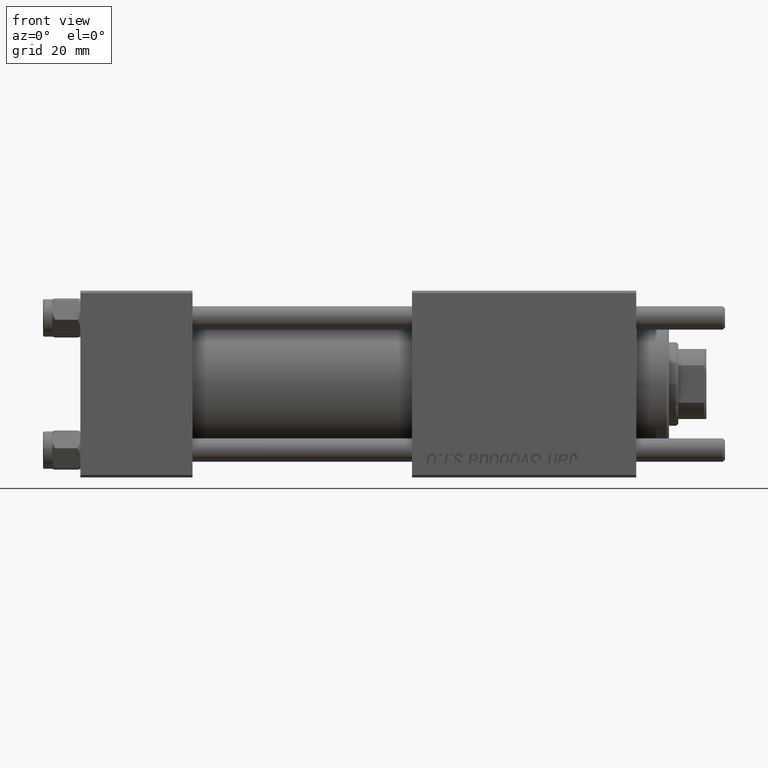
[diagram: clean part render]
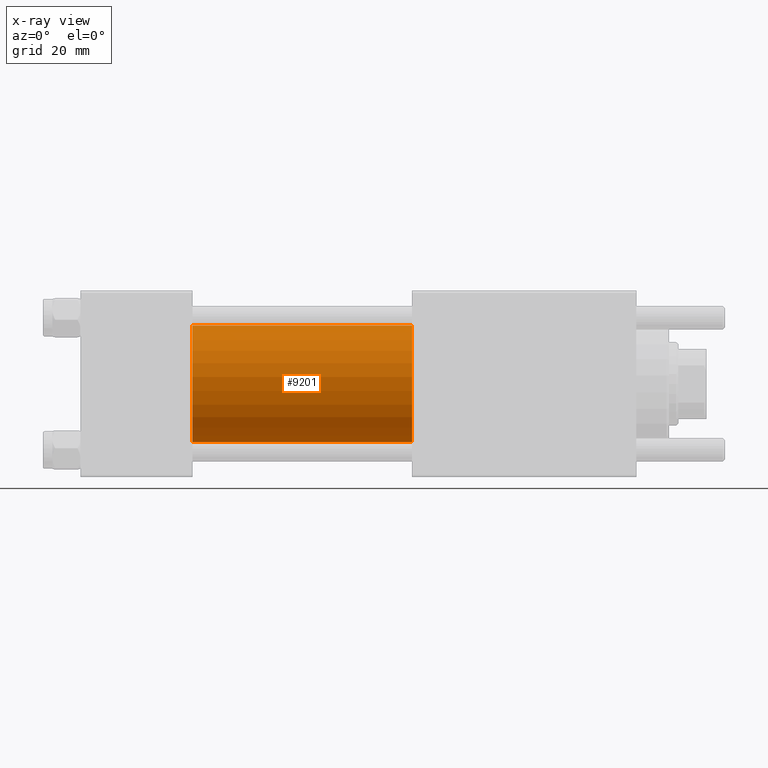
[diagram: x-ray — body ghosted, one internal face saturated and labeled with its STEP entity id]
A machine part, front view, then the same camera in x-ray: the body is ghosted and one INTERNAL B-rep face — a face not visible from any outside direction — is saturated and labeled: STEP entity #9201.
In plain terms, the highlighted cylindrical surface (partial cylindrical patch) has radius 12.5 mm, axis along (-1, -0, -0).
Its self-contained STEP definition (entity closure, byte-faithful):
#1179 = VERTEX_POINT ( 'NONE', #10281 ) ;
#1277 = EDGE_CURVE ( 'NONE', #1179, #28705, #30816, .T. ) ;
#5789 = DIRECTION ( 'NONE',  ( -1.000000000000000000, -0.000000000000000000, -0.000000000000000000 ) ) ;
#7088 = AXIS2_PLACEMENT_3D ( 'NONE', #40027, #31429, #13934 ) ;
#7157 = CARTESIAN_POINT ( 'NONE',  ( 24.00000000000000000, -1.071276715031019515E-15, -12.49999999999999645 ) ) ;
#8072 = LINE ( 'NONE', #30433, #29330 ) ;
#8675 = CARTESIAN_POINT ( 'NONE',  ( 71.00000000000001421, -1.071276715031019515E-15, -12.49999999999999645 ) ) ;
#9085 = FACE_OUTER_BOUND ( 'NONE', #14121, .T. ) ;
#9201 = ADVANCED_FACE ( 'NONE', ( #9085 ), #53766, .F. ) ;
#9523 = ORIENTED_EDGE ( 'NONE', *, *, #1277, .T. ) ;
#10103 = CARTESIAN_POINT ( 'NONE',  ( 71.00000000000001421, -2.602085213965210642E-15, 12.49999999999999645 ) ) ;
#10281 = CARTESIAN_POINT ( 'NONE',  ( 71.00000000000001421, -2.602085213965210642E-15, 12.49999999999999645 ) ) ;
#13934 = DIRECTION ( 'NONE',  ( 0.000000000000000000, 0.000000000000000000, 1.000000000000000000 ) ) ;
#14121 = EDGE_LOOP ( 'NONE', ( #9523, #48164, #41028, #33261 ) ) ;
#16494 = VERTEX_POINT ( 'NONE', #40895 ) ;
#19093 = EDGE_CURVE ( 'NONE', #1179, #16494, #35651, .T. ) ;
#19294 = EDGE_CURVE ( 'NONE', #28705, #47721, #8072, .T. ) ;
#19734 = DIRECTION ( 'NONE',  ( 1.000000000000000000, 0.000000000000000000, 0.000000000000000000 ) ) ;
#21100 = VECTOR ( 'NONE', #5789, 1000.000000000000000 ) ;
#26745 = AXIS2_PLACEMENT_3D ( 'NONE', #54587, #33097, #42259 ) ;
#28075 = EDGE_CURVE ( 'NONE', #16494, #47721, #43219, .T. ) ;
#28705 = VERTEX_POINT ( 'NONE', #8675 ) ;
#29206 = DIRECTION ( 'NONE',  ( 0.000000000000000000, 0.000000000000000000, -1.000000000000000000 ) ) ;
#29330 = VECTOR ( 'NONE', #43321, 1000.000000000000000 ) ;
#30433 = CARTESIAN_POINT ( 'NONE',  ( 71.00000000000001421, -1.071276715031019515E-15, -12.49999999999999645 ) ) ;
#30816 = CIRCLE ( 'NONE', #50936, 12.49999999999999645 ) ;
#31429 = DIRECTION ( 'NONE',  ( -1.000000000000000000, -0.000000000000000000, -0.000000000000000000 ) ) ;
#33097 = DIRECTION ( 'NONE',  ( 1.000000000000000000, 0.000000000000000000, 0.000000000000000000 ) ) ;
#33261 = ORIENTED_EDGE ( 'NONE', *, *, #19093, .F. ) ;
#35651 = LINE ( 'NONE', #10103, #21100 ) ;
#40027 = CARTESIAN_POINT ( 'NONE',  ( 71.00000000000001421, -2.602085213965210642E-15, 0.000000000000000000 ) ) ;
#40895 = CARTESIAN_POINT ( 'NONE',  ( 24.00000000000000000, -2.602085213965210642E-15, 12.49999999999999645 ) ) ;
#41028 = ORIENTED_EDGE ( 'NONE', *, *, #28075, .F. ) ;
#42096 = CARTESIAN_POINT ( 'NONE',  ( 71.00000000000001421, -2.602085213965210642E-15, 0.000000000000000000 ) ) ;
#42259 = DIRECTION ( 'NONE',  ( 0.000000000000000000, 0.000000000000000000, -1.000000000000000000 ) ) ;
#43219 = CIRCLE ( 'NONE', #26745, 12.49999999999999645 ) ;
#43321 = DIRECTION ( 'NONE',  ( -1.000000000000000000, -0.000000000000000000, -0.000000000000000000 ) ) ;
#47721 = VERTEX_POINT ( 'NONE', #7157 ) ;
#48164 = ORIENTED_EDGE ( 'NONE', *, *, #19294, .T. ) ;
#50936 = AXIS2_PLACEMENT_3D ( 'NONE', #42096, #19734, #29206 ) ;
#53766 = CYLINDRICAL_SURFACE ( 'NONE', #7088, 12.49999999999999645 ) ;
#54587 = CARTESIAN_POINT ( 'NONE',  ( 24.00000000000000000, -2.602085213965210642E-15, 0.000000000000000000 ) ) ;